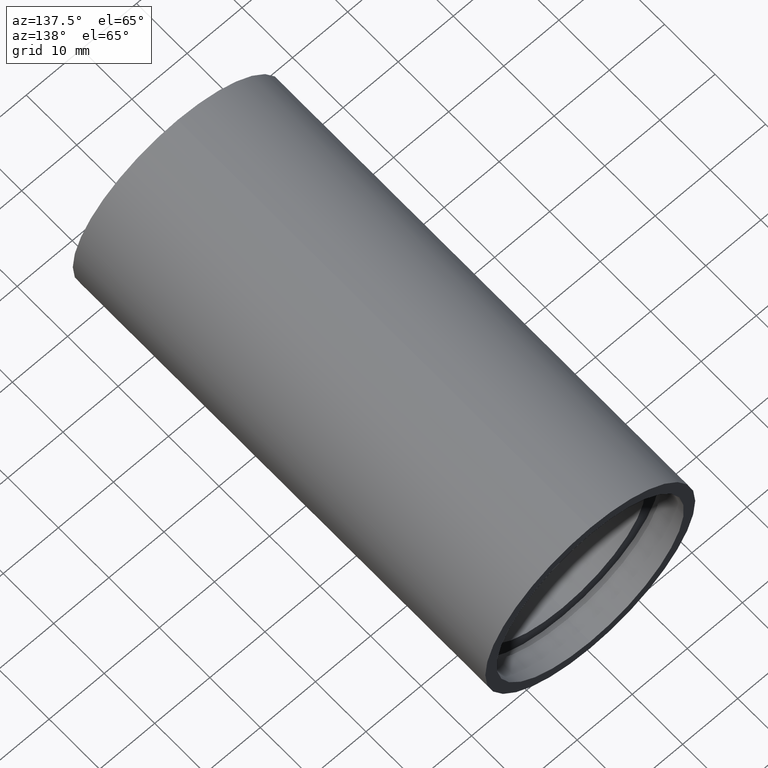
[diagram: clean part render]
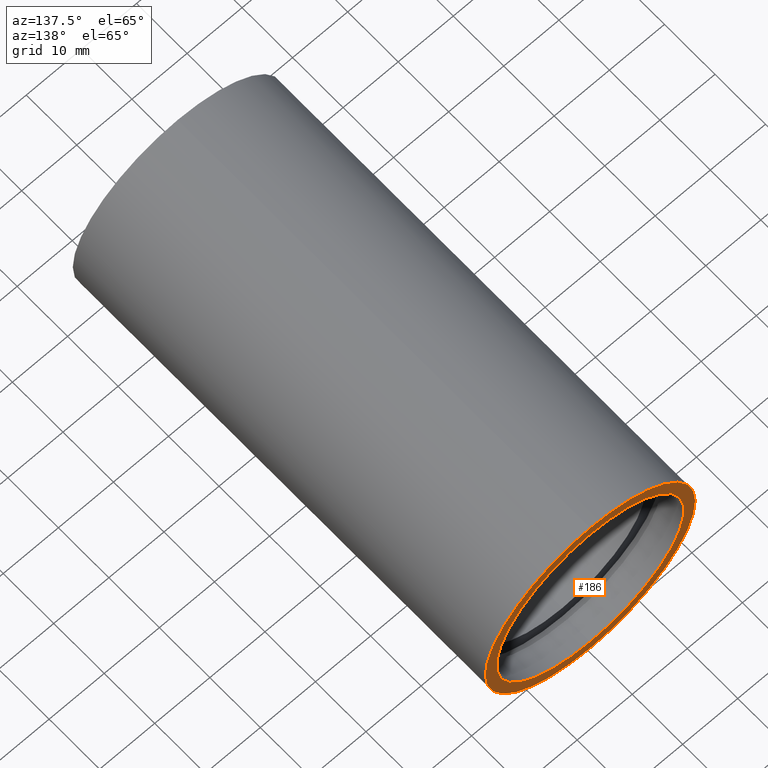
[diagram: same view with one face highlighted and labeled with its STEP entity id]
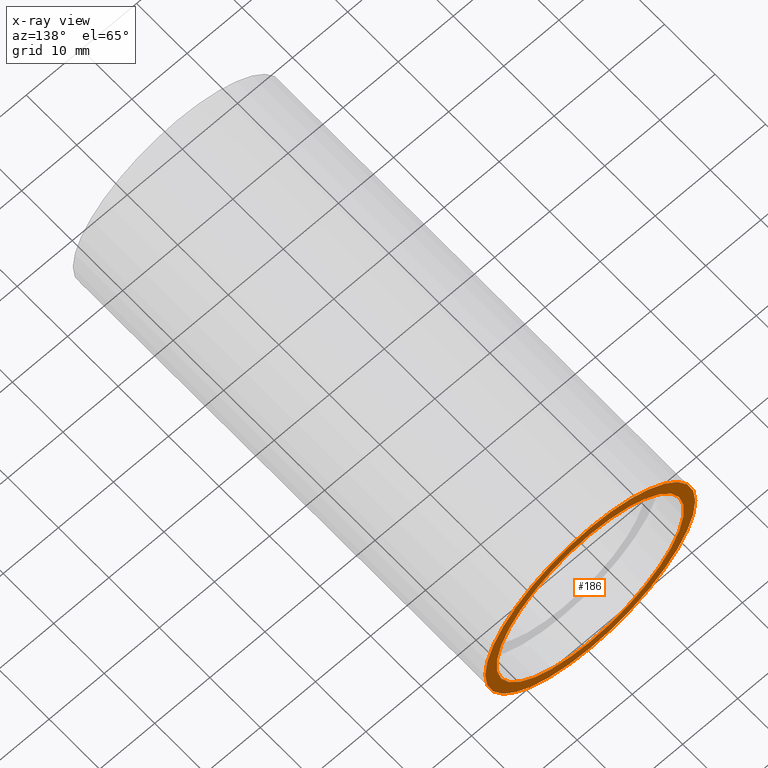
[diagram: x-ray of the same camera — body ghosted, the highlighted face saturated]
A machine part, auxiliary view. The second image highlights one B-rep face of the part: STEP entity #186.
The next image is the same camera in x-ray: the body ghosted, the highlighted face saturated — about 0% of this face is hidden behind the body in this view.
In plain terms, the highlighted planar face has unit normal (0, -1, 0).
Its self-contained STEP definition (entity closure, byte-faithful):
#40 = VERTEX_POINT ( 'NONE', #85 ) ;
#61 = VERTEX_POINT ( 'NONE', #589 ) ;
#65 = FACE_BOUND ( 'NONE', #273, .T. ) ;
#75 = FACE_OUTER_BOUND ( 'NONE', #616, .T. ) ;
#79 = DIRECTION ( 'NONE',  ( -0.0000000000000000000, 1.000000000000000000, -0.0000000000000000000 ) ) ;
#85 = CARTESIAN_POINT ( 'NONE',  ( 2.332952152375710400E-015, 81.69999999999998900, -19.05000000000002200 ) ) ;
#103 = ORIENTED_EDGE ( 'NONE', *, *, #293, .F. ) ;
#108 = AXIS2_PLACEMENT_3D ( 'NONE', #340, #198, #383 ) ;
#116 = AXIS2_PLACEMENT_3D ( 'NONE', #161, #490, #342 ) ;
#125 = AXIS2_PLACEMENT_3D ( 'NONE', #425, #137, #473 ) ;
#126 = CARTESIAN_POINT ( 'NONE',  ( 0.0000000000000000000, 81.69999999999998900, 17.00000000000002100 ) ) ;
#137 = DIRECTION ( 'NONE',  ( -0.0000000000000000000, 1.000000000000000000, -0.0000000000000000000 ) ) ;
#143 = CIRCLE ( 'NONE', #462, 17.00000000000002100 ) ;
#146 = ORIENTED_EDGE ( 'NONE', *, *, #239, .T. ) ;
#155 = AXIS2_PLACEMENT_3D ( 'NONE', #489, #256, #596 ) ;
#161 = CARTESIAN_POINT ( 'NONE',  ( 0.0000000000000000000, 81.69999999999998900, 0.0000000000000000000 ) ) ;
#186 = ADVANCED_FACE ( 'NONE', ( #65, #75 ), #585, .F. ) ;
#198 = DIRECTION ( 'NONE',  ( 0.0000000000000000000, -1.000000000000000000, 0.0000000000000000000 ) ) ;
#200 = CARTESIAN_POINT ( 'NONE',  ( 2.081899558550503000E-015, 81.69999999999998900, -17.00000000000002100 ) ) ;
#239 = EDGE_CURVE ( 'NONE', #61, #40, #568, .T. ) ;
#248 = VERTEX_POINT ( 'NONE', #200 ) ;
#256 = DIRECTION ( 'NONE',  ( -0.0000000000000000000, 1.000000000000000000, -0.0000000000000000000 ) ) ;
#264 = CIRCLE ( 'NONE', #116, 17.00000000000002100 ) ;
#273 = EDGE_LOOP ( 'NONE', ( #500, #103 ) ) ;
#293 = EDGE_CURVE ( 'NONE', #248, #486, #264, .T. ) ;
#340 = CARTESIAN_POINT ( 'NONE',  ( 17.00000000000002100, 81.69999999999998900, 0.0000000000000000000 ) ) ;
#342 = DIRECTION ( 'NONE',  ( 0.0000000000000000000, 0.0000000000000000000, 1.000000000000000000 ) ) ;
#383 = DIRECTION ( 'NONE',  ( 0.0000000000000000000, -0.0000000000000000000, -1.000000000000000000 ) ) ;
#388 = ORIENTED_EDGE ( 'NONE', *, *, #514, .T. ) ;
#425 = CARTESIAN_POINT ( 'NONE',  ( 0.0000000000000000000, 81.69999999999998900, 0.0000000000000000000 ) ) ;
#462 = AXIS2_PLACEMENT_3D ( 'NONE', #518, #79, #463 ) ;
#463 = DIRECTION ( 'NONE',  ( 0.0000000000000000000, 0.0000000000000000000, 1.000000000000000000 ) ) ;
#470 = CIRCLE ( 'NONE', #125, 19.05000000000002200 ) ;
#473 = DIRECTION ( 'NONE',  ( 0.0000000000000000000, 0.0000000000000000000, 1.000000000000000000 ) ) ;
#486 = VERTEX_POINT ( 'NONE', #126 ) ;
#489 = CARTESIAN_POINT ( 'NONE',  ( 0.0000000000000000000, 81.69999999999998900, 0.0000000000000000000 ) ) ;
#490 = DIRECTION ( 'NONE',  ( -0.0000000000000000000, 1.000000000000000000, -0.0000000000000000000 ) ) ;
#494 = EDGE_CURVE ( 'NONE', #486, #248, #143, .T. ) ;
#500 = ORIENTED_EDGE ( 'NONE', *, *, #494, .F. ) ;
#514 = EDGE_CURVE ( 'NONE', #40, #61, #470, .T. ) ;
#518 = CARTESIAN_POINT ( 'NONE',  ( 0.0000000000000000000, 81.69999999999998900, 0.0000000000000000000 ) ) ;
#568 = CIRCLE ( 'NONE', #155, 19.05000000000002200 ) ;
#585 = PLANE ( 'NONE',  #108 ) ;
#589 = CARTESIAN_POINT ( 'NONE',  ( 0.0000000000000000000, 81.69999999999998900, 19.05000000000002200 ) ) ;
#596 = DIRECTION ( 'NONE',  ( 0.0000000000000000000, 0.0000000000000000000, 1.000000000000000000 ) ) ;
#616 = EDGE_LOOP ( 'NONE', ( #146, #388 ) ) ;